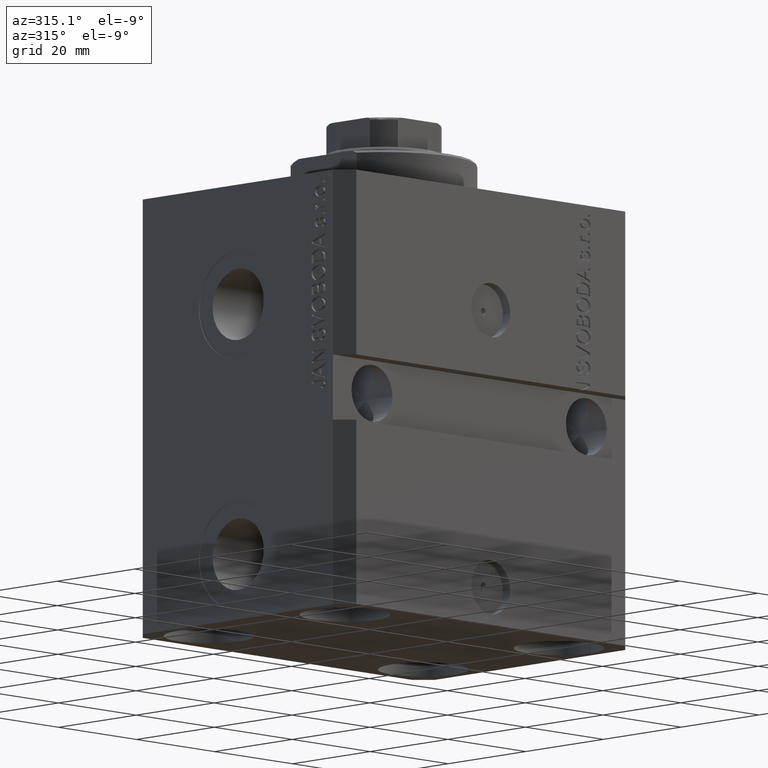
[diagram: clean part render]
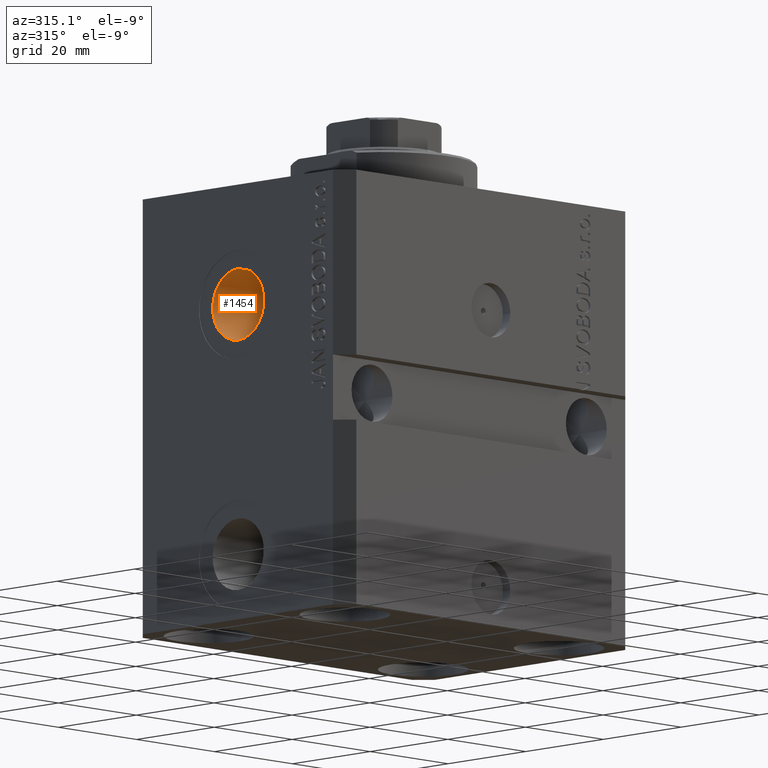
[diagram: same view with one face highlighted and labeled with its STEP entity id]
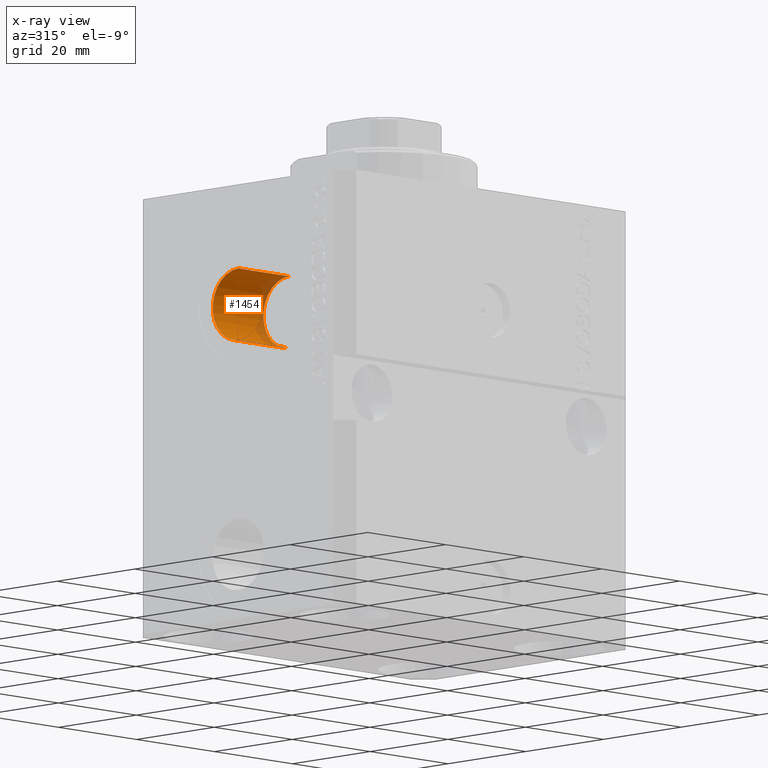
[diagram: x-ray of the same camera — body ghosted, the highlighted face saturated]
A machine part, auxiliary view. The second image highlights one B-rep face of the part: STEP entity #1454.
The next image is the same camera in x-ray: the body ghosted, the highlighted face saturated — about 13% of this face is hidden behind the body in this view.
In plain terms, the highlighted cylindrical surface (edge-blend (fillet) strip) has radius 6.58 mm, axis along (-1, -0, -0).
Its self-contained STEP definition (entity closure, byte-faithful):
#1454 = ADVANCED_FACE ( 'NONE', ( #30777 ), #43665, .F. ) ;
#1854 = DIRECTION ( 'NONE',  ( -1.000000000000000000, 0.000000000000000000, 0.000000000000000000 ) ) ;
#4423 = EDGE_CURVE ( 'NONE', #5395, #15938, #12387, .T. ) ;
#4561 = CARTESIAN_POINT ( 'NONE',  ( -37.39999999999999147, 0.000000000000000000, -22.00000000000000000 ) ) ;
#5395 = VERTEX_POINT ( 'NONE', #25630 ) ;
#5576 = VERTEX_POINT ( 'NONE', #37572 ) ;
#8484 = VERTEX_POINT ( 'NONE', #22391 ) ;
#9009 = ORIENTED_EDGE ( 'NONE', *, *, #21097, .T. ) ;
#10920 = ORIENTED_EDGE ( 'NONE', *, *, #11911, .F. ) ;
#11892 = EDGE_CURVE ( 'NONE', #5576, #15938, #32157, .T. ) ;
#11911 = EDGE_CURVE ( 'NONE', #8484, #5395, #30720, .T. ) ;
#12387 = LINE ( 'NONE', #26147, #12594 ) ;
#12594 = VECTOR ( 'NONE', #28254, 1000.000000000000000 ) ;
#15938 = VERTEX_POINT ( 'NONE', #16112 ) ;
#16112 = CARTESIAN_POINT ( 'NONE',  ( -37.39999999999999147, 8.058175938389579572E-16, -28.57999999999999829 ) ) ;
#16834 = AXIS2_PLACEMENT_3D ( 'NONE', #23341, #26509, #37120 ) ;
#17284 = DIRECTION ( 'NONE',  ( -1.000000000000000000, -0.000000000000000000, -0.000000000000000000 ) ) ;
#17630 = ORIENTED_EDGE ( 'NONE', *, *, #4423, .F. ) ;
#18979 = CARTESIAN_POINT ( 'NONE',  ( -24.39999999999999147, 0.000000000000000000, -22.00000000000000000 ) ) ;
#20632 = AXIS2_PLACEMENT_3D ( 'NONE', #18979, #1854, #28688 ) ;
#21097 = EDGE_CURVE ( 'NONE', #8484, #5576, #24047, .T. ) ;
#22391 = CARTESIAN_POINT ( 'NONE',  ( -24.39999999999999147, 0.000000000000000000, -15.41999999999999993 ) ) ;
#23341 = CARTESIAN_POINT ( 'NONE',  ( -24.39999999999999147, 0.000000000000000000, -22.00000000000000000 ) ) ;
#24047 = LINE ( 'NONE', #37831, #28004 ) ;
#25630 = CARTESIAN_POINT ( 'NONE',  ( -24.39999999999999147, 8.058175938389579572E-16, -28.57999999999999829 ) ) ;
#26147 = CARTESIAN_POINT ( 'NONE',  ( -24.39999999999999147, 8.058175938389580558E-16, -28.57999999999999829 ) ) ;
#26509 = DIRECTION ( 'NONE',  ( -1.000000000000000000, -0.000000000000000000, -0.000000000000000000 ) ) ;
#27478 = EDGE_LOOP ( 'NONE', ( #17630, #10920, #9009, #37339 ) ) ;
#28004 = VECTOR ( 'NONE', #17284, 1000.000000000000000 ) ;
#28254 = DIRECTION ( 'NONE',  ( -1.000000000000000000, -0.000000000000000000, -0.000000000000000000 ) ) ;
#28688 = DIRECTION ( 'NONE',  ( 0.000000000000000000, 0.000000000000000000, 1.000000000000000000 ) ) ;
#30720 = CIRCLE ( 'NONE', #20632, 6.579999999999999183 ) ;
#30777 = FACE_OUTER_BOUND ( 'NONE', #27478, .T. ) ;
#32157 = CIRCLE ( 'NONE', #44410, 6.579999999999999183 ) ;
#32735 = DIRECTION ( 'NONE',  ( 0.000000000000000000, 0.000000000000000000, 1.000000000000000000 ) ) ;
#36122 = DIRECTION ( 'NONE',  ( -1.000000000000000000, 0.000000000000000000, 0.000000000000000000 ) ) ;
#37120 = DIRECTION ( 'NONE',  ( 0.000000000000000000, 0.000000000000000000, 1.000000000000000000 ) ) ;
#37339 = ORIENTED_EDGE ( 'NONE', *, *, #11892, .T. ) ;
#37572 = CARTESIAN_POINT ( 'NONE',  ( -37.39999999999999147, 0.000000000000000000, -15.41999999999999993 ) ) ;
#37831 = CARTESIAN_POINT ( 'NONE',  ( -24.39999999999999147, 0.000000000000000000, -15.41999999999999993 ) ) ;
#43665 = CYLINDRICAL_SURFACE ( 'NONE', #16834, 6.579999999999999183 ) ;
#44410 = AXIS2_PLACEMENT_3D ( 'NONE', #4561, #36122, #32735 ) ;